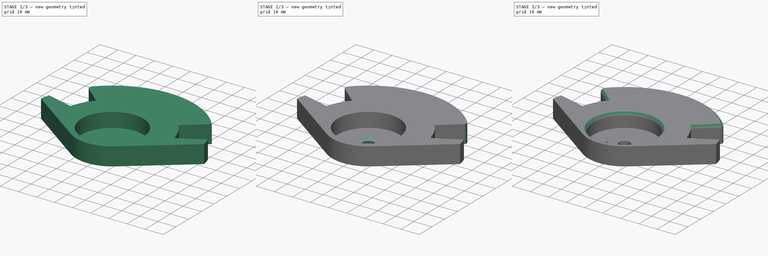
[diagram: build sequence overview — one tinted view per stage of 3, left to right]
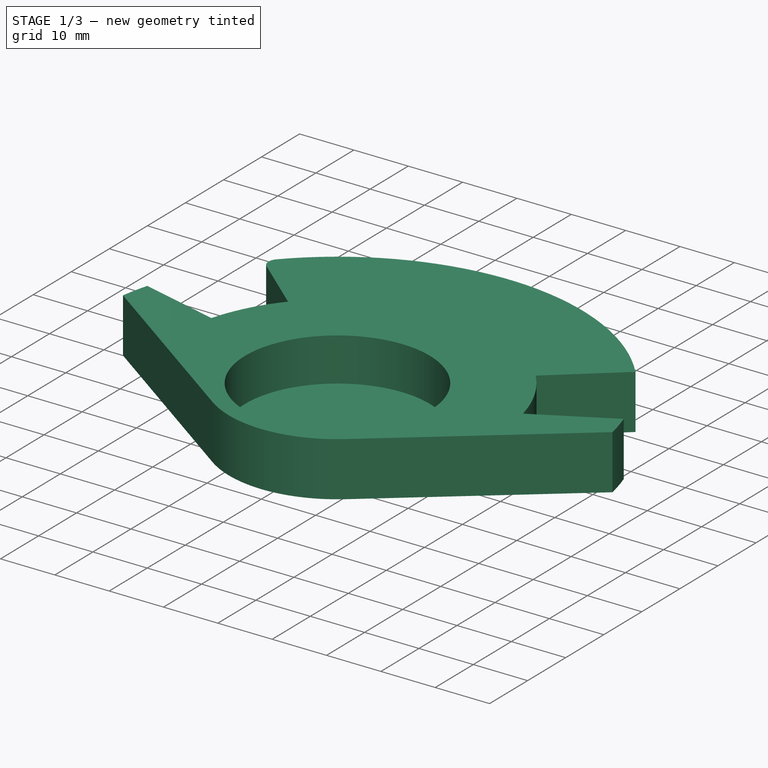
[diagram: stage 1 of 3 — iso view after this stage's code; geometry added in this stage tinted green]
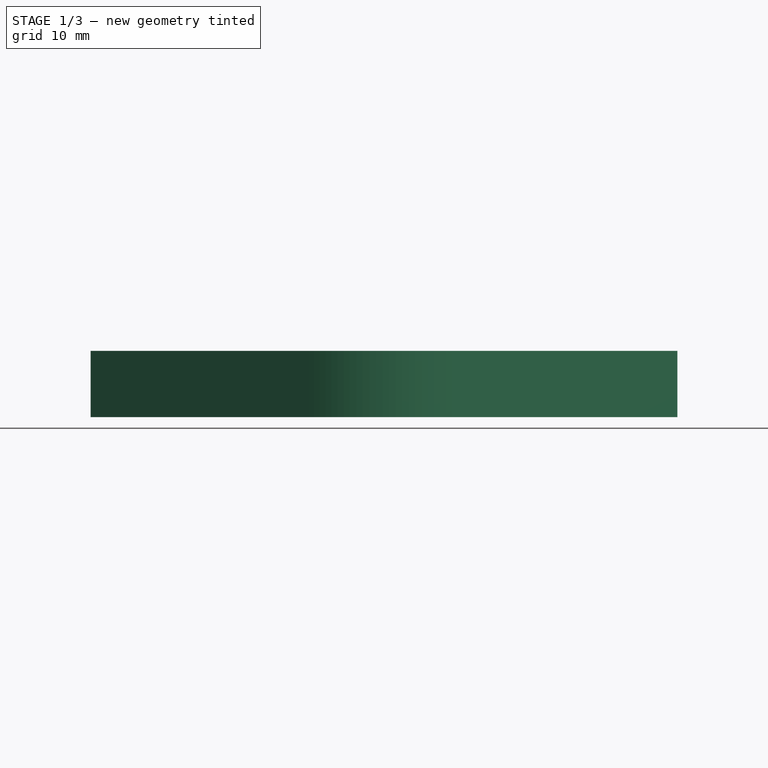
[diagram: stage 1 of 3 — front view after this stage's code; geometry added in this stage tinted green]
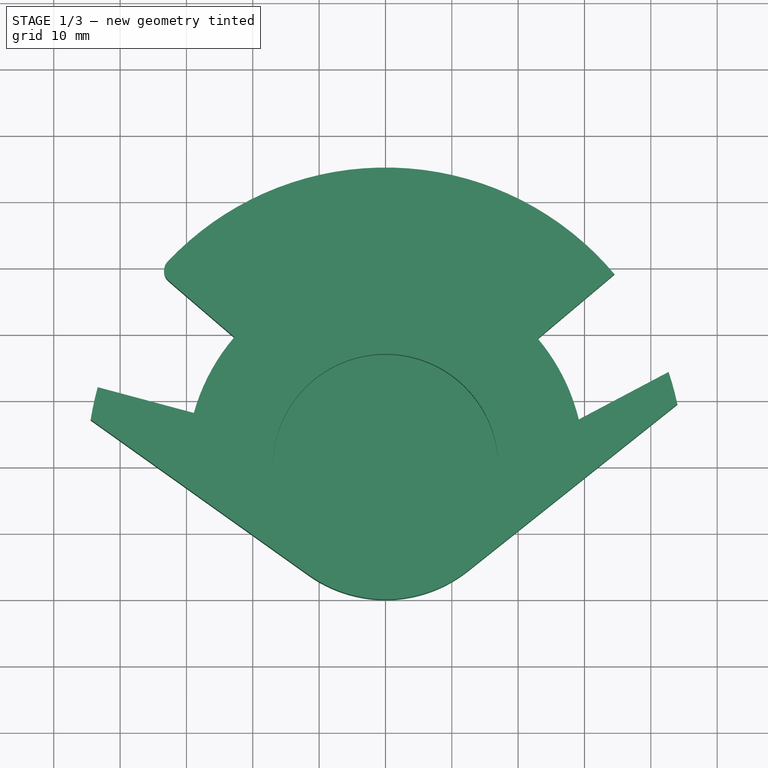
[diagram: stage 1 of 3 — top view after this stage's code; geometry added in this stage tinted green]
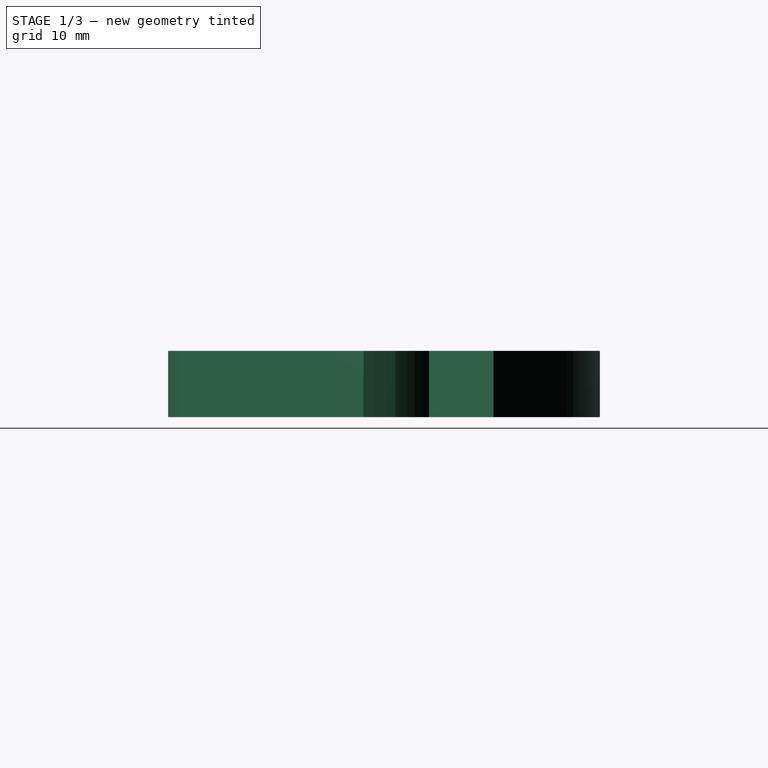
[diagram: stage 1 of 3 — right view after this stage's code; geometry added in this stage tinted green]
FCSTD DOCUMENT  (FreeCAD 0.14R2935 (Git))
Label: sort_machine
License: CC-BY 3.0
LicenseURL: http://creativecommons.org/licenses/by/3.0/
objects: Sketcher::SketchObject×4, PartDesign::Fillet×4, PartDesign::Pocket×3, PartDesign::Pad×1
note: 16 computed .brp shape members not serialized (recipe doc carries the construction recipe); baked Part::Feature solids carry a one-line shape summary decoded from their .brp

FEATURE [Sketcher::SketchObject] Sketch
  sketch-geometry (14):
    g0: ArcOfCircle CenterX=0 CenterY=0 CenterZ=0 NormalX=0 NormalY=0 NormalZ=1 Radius=30 StartAngle=0.239636 EndAngle=0.699866
    g1: LineSegment StartX=29.1427 StartY=7.12048 StartZ=0 EndX=42.6735 EndY=14.2819 EndZ=0
    g2: LineSegment StartX=-28.8853 StartY=8.10194 StartZ=0 EndX=-43.3748 EndY=11.9844 EndZ=0
    g3: LineSegment StartX=-22.7705 StartY=19.5321 StartZ=0 EndX=-34.2309 EndY=29.3626 EndZ=0
    g4: LineSegment [constr] StartX=-22.7705 StartY=19.5321 StartZ=0 EndX=-31.8855 EndY=8.90585 EndZ=0
    g5: LineSegment StartX=22.9478 StartY=19.3235 StartZ=0 EndX=34.4974 EndY=29.0489 EndZ=0
    g6: LineSegment [constr] StartX=22.9478 StartY=19.3235 StartZ=0 EndX=31.9655 EndY=8.61447 EndZ=0
    g7: ArcOfCircle CenterX=0 CenterY=0 CenterZ=0 NormalX=0 NormalY=0 NormalZ=1 Radius=30 StartAngle=2.4326 EndAngle=2.86813
    g8: ArcOfCircle CenterX=0 CenterY=0 CenterZ=0 NormalX=0 NormalY=0 NormalZ=1 Radius=45.0989 StartAngle=0.699866 EndAngle=2.4326
    g9: LineSegment StartX=43.9945 StartY=9.45959 StartZ=0 EndX=12.4564 EndY=-15.6473 EndZ=0
    g10: LineSegment StartX=-44.4366 StartY=7.09844 StartZ=0 EndX=-11.6037 EndY=-16.2897 EndZ=0
    g11: ArcOfCircle CenterX=0 CenterY=0 CenterZ=0 NormalX=0 NormalY=0 NormalZ=1 Radius=20 StartAngle=4.09343 EndAngle=5.38473
    g12: ArcOfCircle CenterX=0 CenterY=0 CenterZ=0 NormalX=0 NormalY=0 NormalZ=1 Radius=45 StartAngle=0.211793 EndAngle=0.322961
    g13: ArcOfCircle CenterX=0 CenterY=0 CenterZ=0 NormalX=0 NormalY=0 NormalZ=1 Radius=45 StartAngle=2.87202 EndAngle=2.98319
  constraints (38):
    c: Radius(g0) = 30
    c: Angle(g2) = 2.87979
    c: Coincident(g-1,g0)
    c: Perpendicular(g3,g0)
    c: Tangent(g4,g0)
    c: Perpendicular(g4,g3)
    c: PointOnObject(g4,g2)
    c: Distance(g4) = 14
    c: Perpendicular(g5,g0)
    c: PointOnObject(g6,g1)
    c: Tangent(g6,g0)
    c: Perpendicular(g6,g5)
    c: Distance(g6) = 14
    c: Coincident(g2,g7)
    c: Coincident(g1,g0)
    c: Equal(g0,g7)
    c: Coincident(g0,g5)
    c: Coincident(g7,g3)
    c: Coincident(g0,g7)
    c: Coincident(g8,g3)
    c: Coincident(g8,g5)
    c: Coincident(g9,g11)
    c: Coincident(g11,g10)
    c: Coincident(g-1,g11)
    c: Coincident(g12,g-1)
    c: Coincident(g12,g1)
    c: Coincident(g12,g9)
    c: Coincident(g13,g-1)
    c: Coincident(g13,g10)
    c: Coincident(g13,g2)
    c: Radius(g13) = 45
    c: Radius(g12) = 45
    c: Distance(g2,g10) = 5
    c: Distance(g1,g9) = 5
    c: Coincident(g-1,g8)
    c: Distance(g-1,g10) = 20
    c: Tangent(g11,g10)
    c: Tangent(g9,g11)
FEATURE [PartDesign::Pad] Pad
  Length = 10
  Length2 = 100
  Sketch = -> Sketch
  Type = 0
FEATURE [Sketcher::SketchObject] Sketch001
  Placement = pos=(0,0,10) rot=(0,0,1;0rad)
  Support = -> Pad [Face14]
  sketch-geometry (1):
    g0: Circle CenterX=0 CenterY=0 CenterZ=0 NormalX=0 NormalY=0 NormalZ=1 Radius=17
  constraints (1):
    c: Radius(g0) = 17
FEATURE [PartDesign::Pocket] Pocket
  Length = 8
  Sketch = -> Sketch001
  Type = 0
FEATURE [PartDesign::Fillet] Fillet
  Base = -> Pocket [Edge33]
  Radius = 2
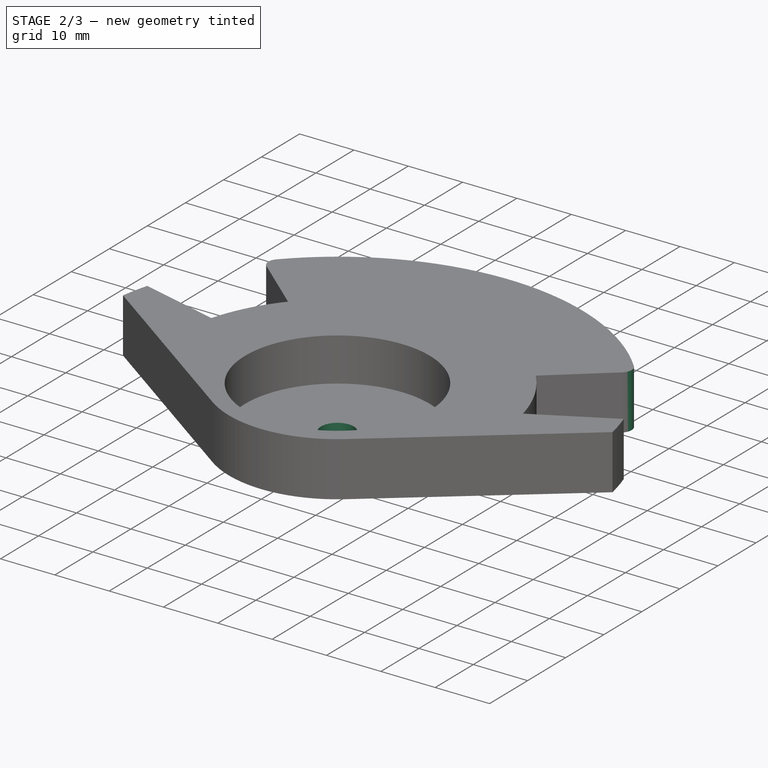
[diagram: stage 2 of 3 — iso view after this stage's code; geometry added in this stage tinted green]
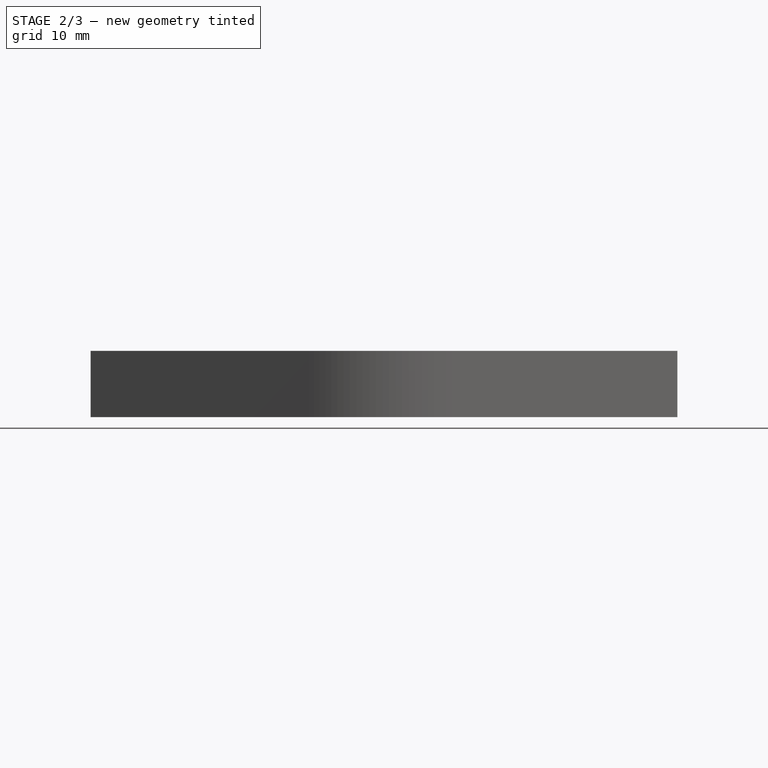
[diagram: stage 2 of 3 — front view after this stage's code; geometry added in this stage tinted green]
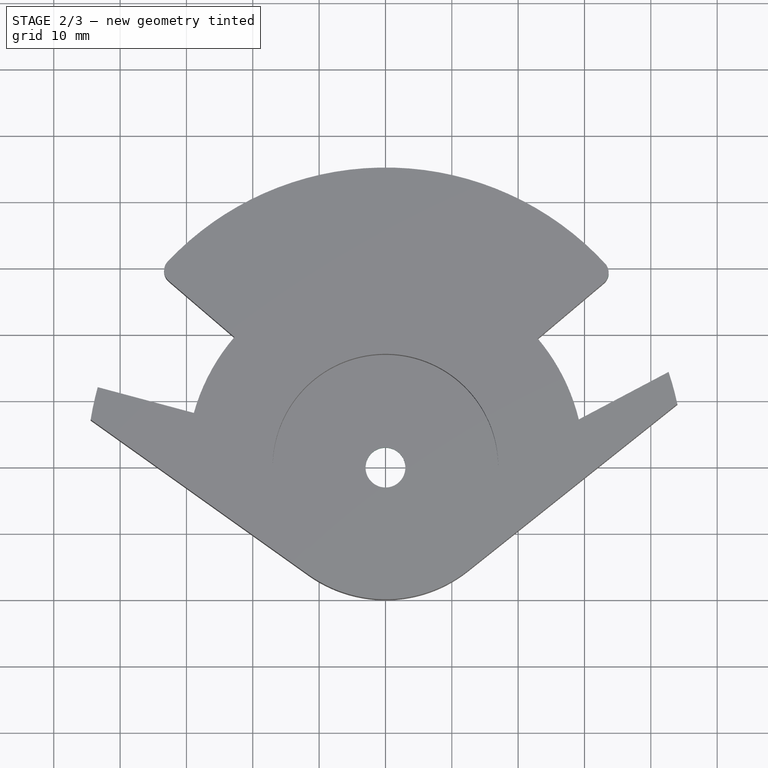
[diagram: stage 2 of 3 — top view after this stage's code; geometry added in this stage tinted green]
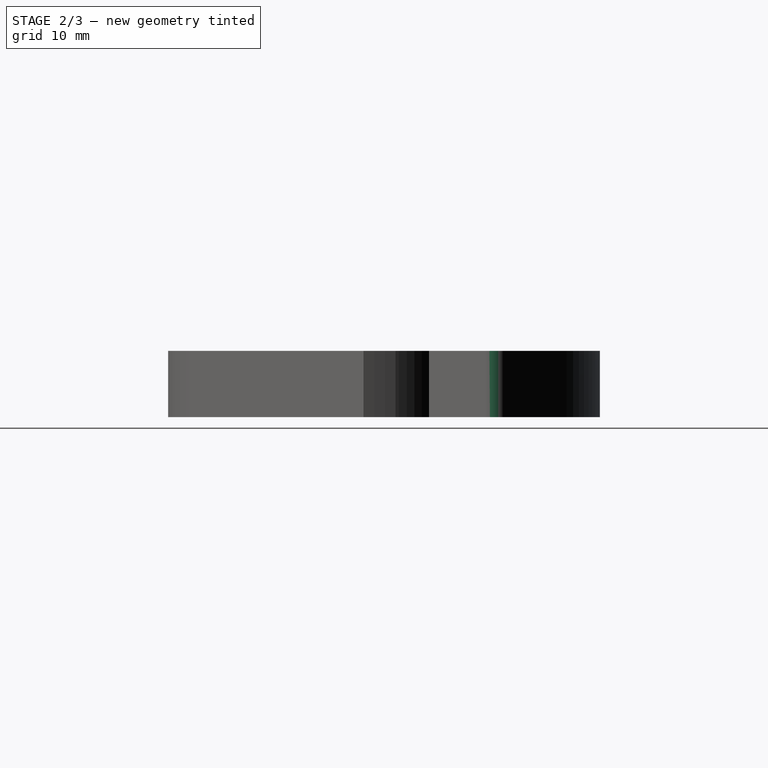
[diagram: stage 2 of 3 — right view after this stage's code; geometry added in this stage tinted green]
FEATURE [PartDesign::Fillet] Fillet001
  Base = -> Fillet [Edge15]
  Radius = 2
FEATURE [Sketcher::SketchObject] Sketch002
  Placement = pos=(0,0,2) rot=(0,0,1;0rad)
  Support = -> Fillet001 [Face18]
  sketch-geometry (1):
    g0: Circle CenterX=0 CenterY=0 CenterZ=0 NormalX=0 NormalY=0 NormalZ=1 Radius=3
  constraints (2):
    c: Radius(g0) = 3
    c: Coincident(g0,g-1)
FEATURE [PartDesign::Pocket] Pocket001
  Length = 5
  Sketch = -> Sketch002
  Type = 0
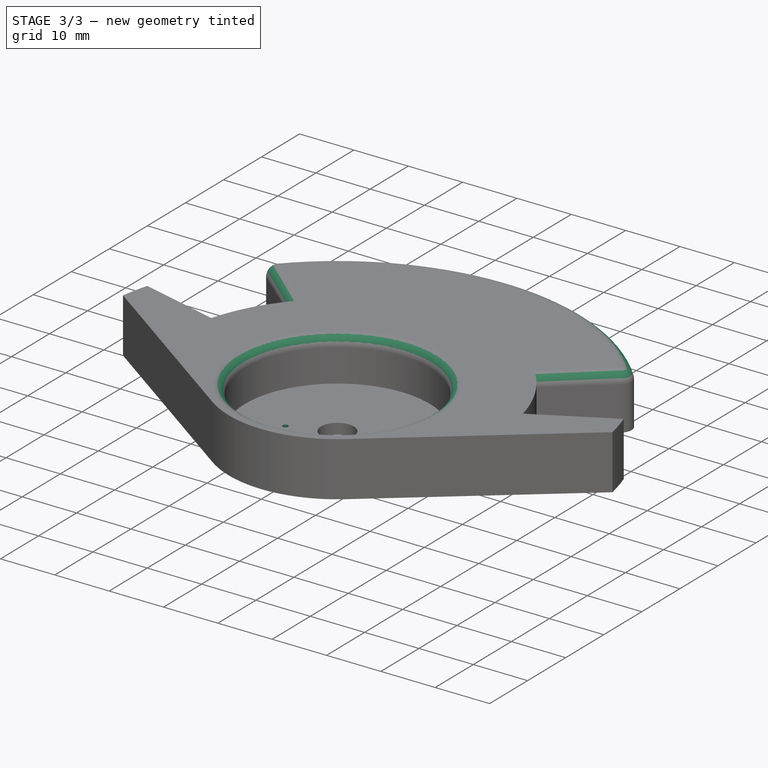
[diagram: stage 3 of 3 — iso view after this stage's code; geometry added in this stage tinted green]
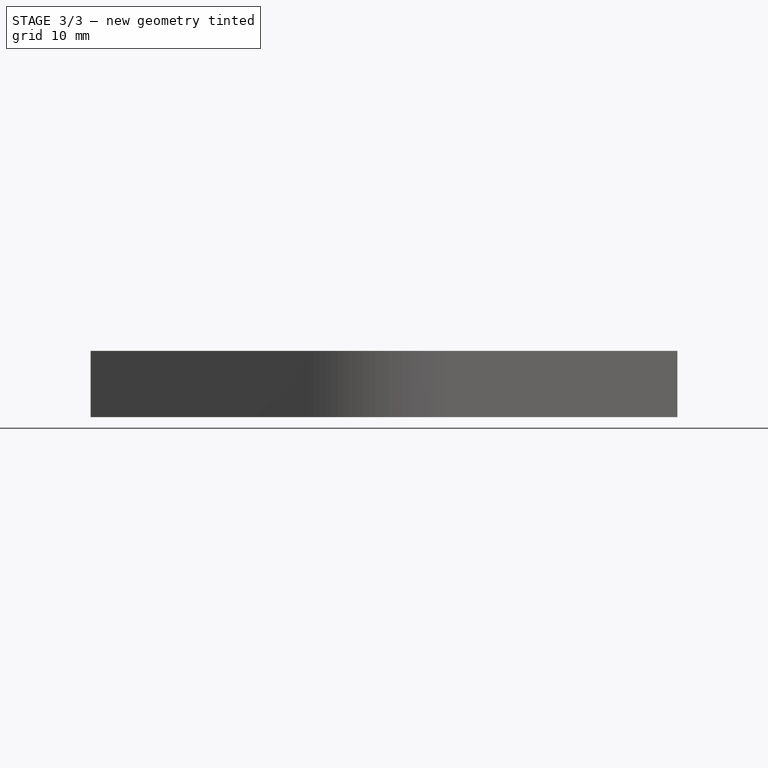
[diagram: stage 3 of 3 — front view after this stage's code; geometry added in this stage tinted green]
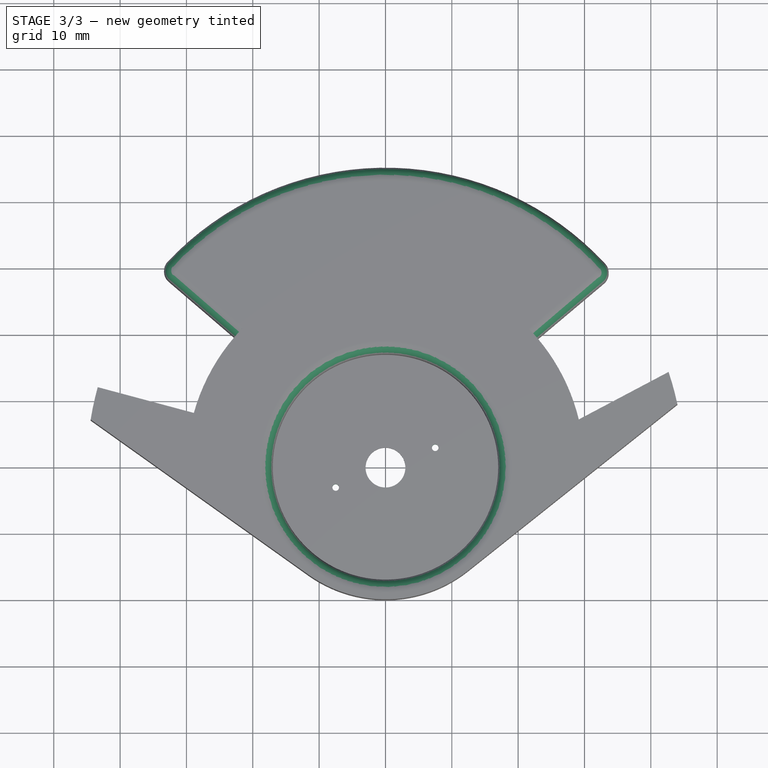
[diagram: stage 3 of 3 — top view after this stage's code; geometry added in this stage tinted green]
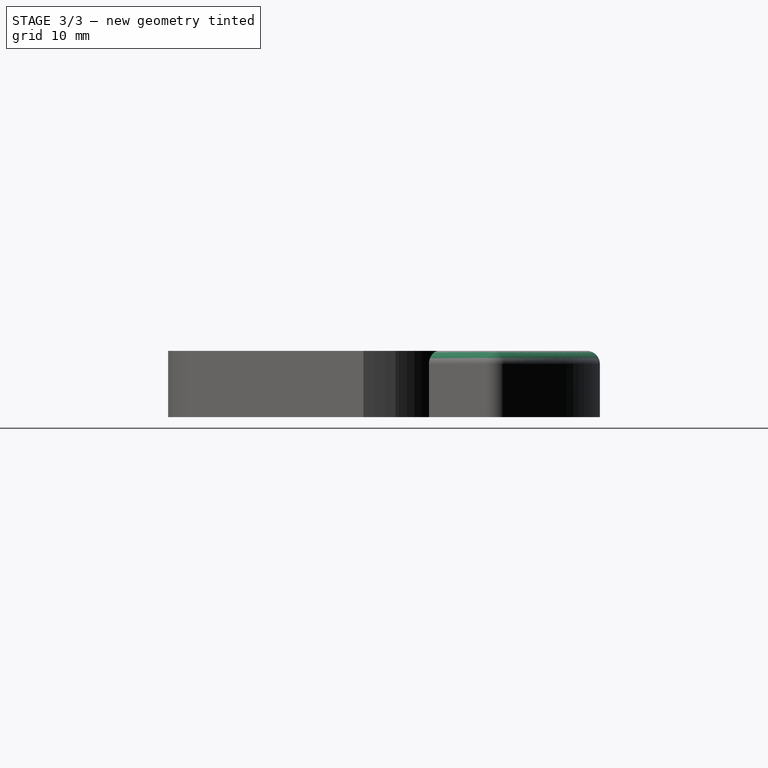
[diagram: stage 3 of 3 — right view after this stage's code; geometry added in this stage tinted green]
FEATURE [PartDesign::Fillet] Fillet002
  Base = -> Pocket001 [Edge46]
  Radius = 2
FEATURE [PartDesign::Fillet] Fillet003
  Base = -> Fillet002 [Edge2]
  Radius = 2
FEATURE [Sketcher::SketchObject] Sketch003
  Placement = pos=(0,0,2) rot=(0,0,1;0rad)
  Support = -> Fillet003 [Face25]
  sketch-geometry (2):
    g0: Circle CenterX=7.5 CenterY=3 CenterZ=0 NormalX=0 NormalY=0 NormalZ=1 Radius=0.5
    g1: Circle CenterX=-7.5 CenterY=-3 CenterZ=0 NormalX=0 NormalY=0 NormalZ=1 Radius=0.5
  constraints (6):
    c: DistanceX(g-1,g0) = 7.5
    c: DistanceY(g-1,g0) = 3
    c: Radius(g0) = 0.5
    c: Radius(g1) = 0.5
    c: DistanceX(g-1,g1) = -7.5
    c: DistanceY(g-1,g1) = -3
FEATURE [PartDesign::Pocket] Pocket002
  Length = 5
  Sketch = -> Sketch003
  Type = 0
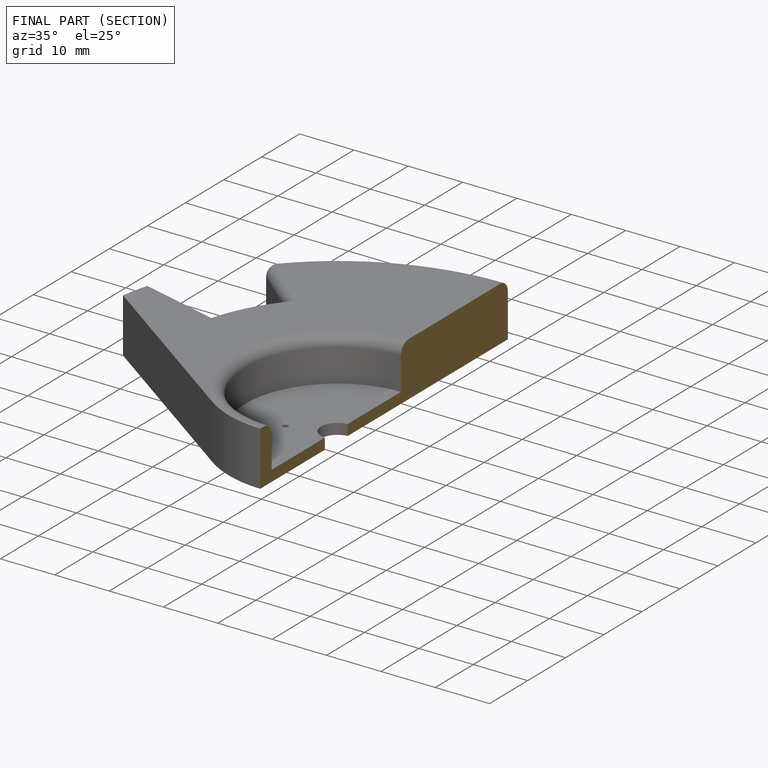
[diagram: finished part — half-section view (interior)]
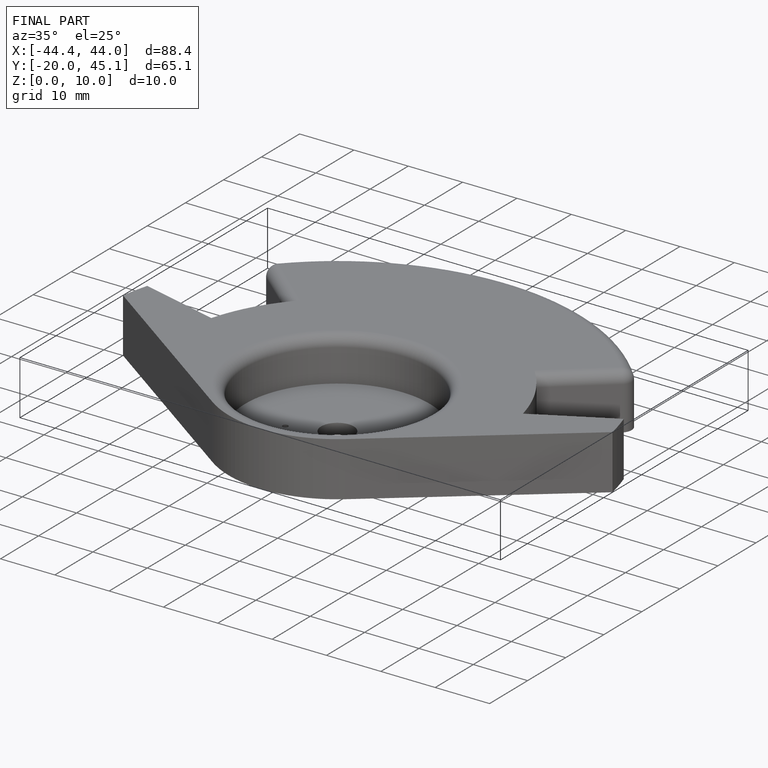
[diagram: finished part — iso view with bounding-box wireframe]
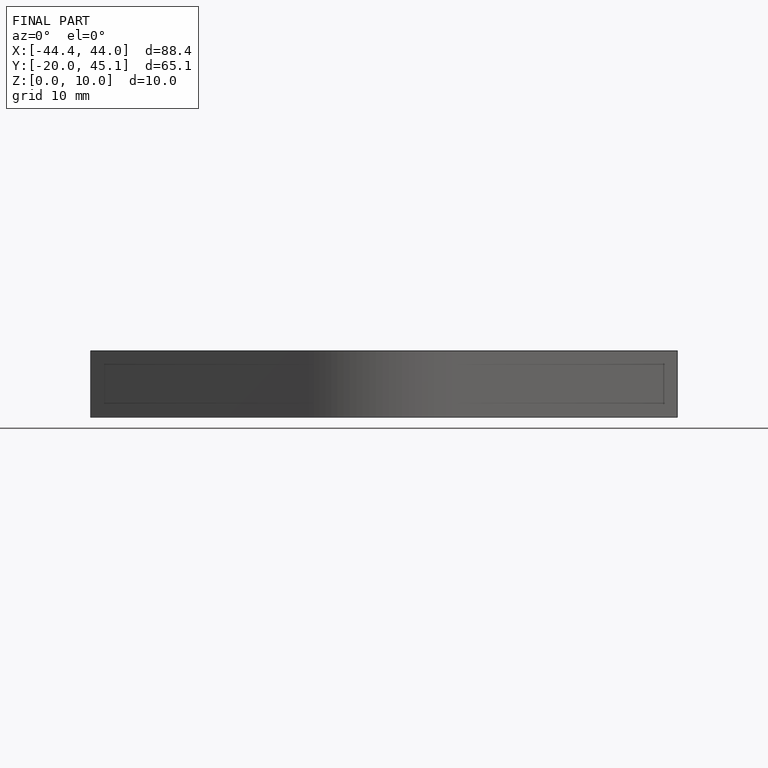
[diagram: finished part — front view with bounding-box wireframe]
